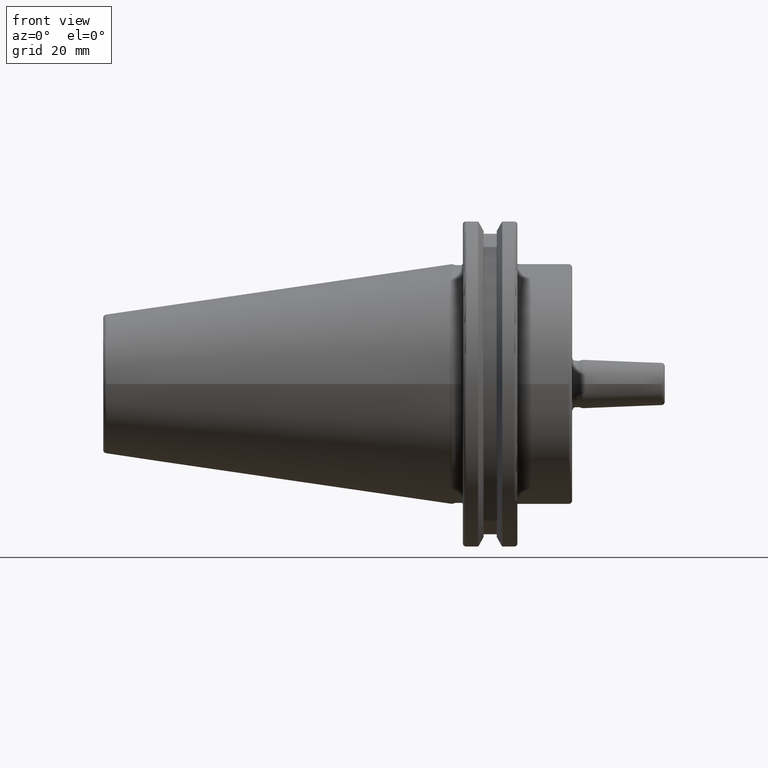
[diagram: clean part render]
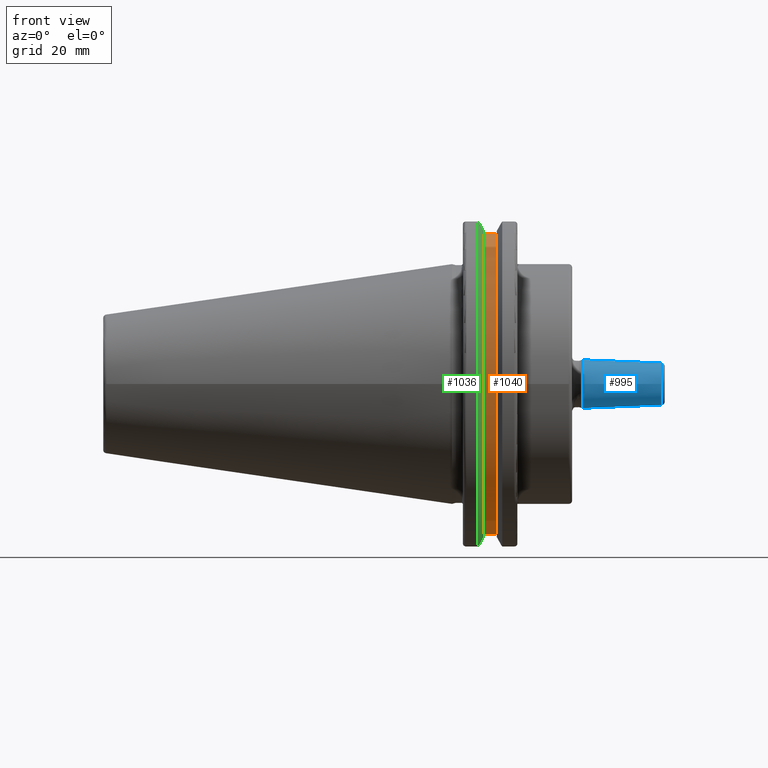
[diagram: same view with three faces highlighted in distinct colors, each labeled with its STEP entity id]
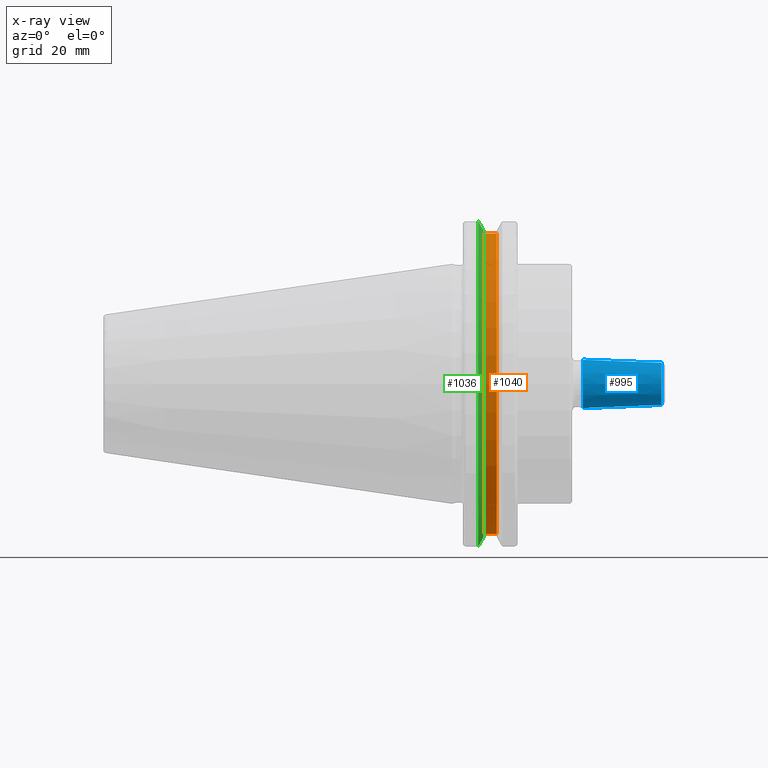
[diagram: x-ray of the same camera — body ghosted, the three highlighted faces saturated]
A machine part, front view with three faces highlighted in distinct colors.
The next image is the same camera in x-ray (body ghosted, the three faces saturated) — at least one of them is partly hidden behind the body in this view.
Their STEP definitions:

[orange] entity #1040 — the highlighted cylindrical surface (partial cylindrical patch) has radius 45.6435 mm, axis along (1, 0, 0).
#152=FACE_OUTER_BOUND('',#216,.T.);
#216=EDGE_LOOP('',(#940,#941,#942,#943));
#264=LINE('',#1709,#333);
#269=LINE('',#1727,#338);
#333=VECTOR('',#1319,10.);
#338=VECTOR('',#1326,10.);
#411=CIRCLE('',#1168,45.6435);
#413=CIRCLE('',#1172,45.6435);
#479=VERTEX_POINT('',#1706);
#480=VERTEX_POINT('',#1708);
#485=VERTEX_POINT('',#1724);
#486=VERTEX_POINT('',#1726);
#597=EDGE_CURVE('',#480,#479,#264,.T.);
#604=EDGE_CURVE('',#486,#485,#269,.T.);
#662=EDGE_CURVE('',#479,#486,#411,.T.);
#664=EDGE_CURVE('',#480,#485,#413,.T.);
#940=ORIENTED_EDGE('',*,*,#604,.T.);
#941=ORIENTED_EDGE('',*,*,#664,.F.);
#942=ORIENTED_EDGE('',*,*,#597,.T.);
#943=ORIENTED_EDGE('',*,*,#662,.T.);
#987=CYLINDRICAL_SURFACE('',#1171,45.6435);
#1040=ADVANCED_FACE('',(#152),#987,.T.);
#1168=AXIS2_PLACEMENT_3D('',#1901,#1444,#1445);
#1171=AXIS2_PLACEMENT_3D('',#1904,#1450,#1451);
#1172=AXIS2_PLACEMENT_3D('',#1905,#1452,#1453);
#1319=DIRECTION('',(-1.,0.,0.));
#1326=DIRECTION('',(1.,0.,0.));
#1444=DIRECTION('center_axis',(1.,0.,0.));
#1445=DIRECTION('ref_axis',(0.,0.,-1.));
#1450=DIRECTION('center_axis',(1.,0.,0.));
#1451=DIRECTION('ref_axis',(0.,-1.,-1.22464679914735E-16));
#1452=DIRECTION('center_axis',(1.,0.,0.));
#1453=DIRECTION('ref_axis',(0.,0.,-1.));
#1706=CARTESIAN_POINT('',(9.2123,-12.95,43.7678716897452));
#1708=CARTESIAN_POINT('',(13.0423,-12.95,43.7678716897452));
#1709=CARTESIAN_POINT('',(11.1273,-12.95,43.7678716897452));
#1724=CARTESIAN_POINT('',(13.0423,-12.95,-43.7678716897452));
#1726=CARTESIAN_POINT('',(9.2123,-12.95,-43.7678716897452));
#1727=CARTESIAN_POINT('',(11.1273,-12.95,-43.7678716897452));
#1901=CARTESIAN_POINT('Origin',(9.2123,0.,0.));
#1904=CARTESIAN_POINT('Origin',(11.1273,0.,0.));
#1905=CARTESIAN_POINT('Origin',(13.0423,0.,0.));

[blue] entity #995 — the highlighted conical surface has half-angle 2.336 deg.
#48=CONICAL_SURFACE('',#1089,6.63206127904202,0.0407647826742056);
#107=FACE_OUTER_BOUND('',#168,.T.);
#168=EDGE_LOOP('',(#697,#698,#699,#700,#701));
#230=LINE('',#1513,#299);
#299=VECTOR('',#1227,6.63206127904202);
#375=CIRCLE('',#1088,7.0995);
#376=CIRCLE('',#1090,6.16462255808404);
#377=CIRCLE('',#1091,6.16462255808404);
#425=VERTEX_POINT('',#1506);
#426=VERTEX_POINT('',#1510);
#427=VERTEX_POINT('',#1511);
#530=EDGE_CURVE('',#425,#425,#375,.T.);
#532=EDGE_CURVE('',#426,#427,#376,.T.);
#533=EDGE_CURVE('',#426,#425,#230,.T.);
#534=EDGE_CURVE('',#427,#426,#377,.T.);
#697=ORIENTED_EDGE('',*,*,#532,.F.);
#698=ORIENTED_EDGE('',*,*,#533,.T.);
#699=ORIENTED_EDGE('',*,*,#530,.T.);
#700=ORIENTED_EDGE('',*,*,#533,.F.);
#701=ORIENTED_EDGE('',*,*,#534,.F.);
#995=ADVANCED_FACE('',(#107),#48,.T.);
#1088=AXIS2_PLACEMENT_3D('',#1507,#1220,#1221);
#1089=AXIS2_PLACEMENT_3D('',#1509,#1223,#1224);
#1090=AXIS2_PLACEMENT_3D('',#1512,#1225,#1226);
#1091=AXIS2_PLACEMENT_3D('',#1514,#1228,#1229);
#1220=DIRECTION('center_axis',(1.,0.,0.));
#1221=DIRECTION('ref_axis',(0.,0.,-1.));
#1223=DIRECTION('center_axis',(-1.,0.,0.));
#1224=DIRECTION('ref_axis',(0.,1.,0.));
#1225=DIRECTION('center_axis',(1.,0.,0.));
#1226=DIRECTION('ref_axis',(0.,0.,-1.));
#1227=DIRECTION('',(-0.999169231301691,-0.0407534933470489,-4.99086351815363E-18));
#1228=DIRECTION('center_axis',(1.,0.,0.));
#1229=DIRECTION('ref_axis',(0.,0.,-1.));
#1506=CARTESIAN_POINT('',(38.1,-7.0995,-8.69437995054664E-16));
#1507=CARTESIAN_POINT('Origin',(38.1,0.,0.));
#1509=CARTESIAN_POINT('Origin',(49.5603767466735,0.,0.));
#1510=CARTESIAN_POINT('',(61.0207534933471,-6.16462255808404,-7.54948528370918E-16));
#1511=CARTESIAN_POINT('',(61.0207534933471,-7.54948528370918E-16,6.16462255808404));
#1512=CARTESIAN_POINT('Origin',(61.0207534933471,0.,0.));
#1513=CARTESIAN_POINT('',(49.5603767466735,-6.63206127904202,-8.12193261712791E-16));
#1514=CARTESIAN_POINT('Origin',(61.0207534933471,0.,0.));

[green] entity #1036 — the highlighted conical surface has half-angle 60 deg.
#18=(
BOUNDED_CURVE()
B_SPLINE_CURVE(2,(#1703,#1704,#1705),.UNSPECIFIED.,.F.,.F.)
B_SPLINE_CURVE_WITH_KNOTS((3,3),(0.,0.275823910675363),.UNSPECIFIED.)
CURVE()
GEOMETRIC_REPRESENTATION_ITEM()
RATIONAL_B_SPLINE_CURVE((1.,1.00038235575411,1.00012873637099))
REPRESENTATION_ITEM('')
);
#21=(
BOUNDED_CURVE()
B_SPLINE_CURVE(2,(#1731,#1732,#1733),.UNSPECIFIED.,.F.,.F.)
B_SPLINE_CURVE_WITH_KNOTS((3,3),(0.0558332664508432,0.331657177124506),
 .UNSPECIFIED.)
CURVE()
GEOMETRIC_REPRESENTATION_ITEM()
RATIONAL_B_SPLINE_CURVE((1.00012873636717,1.00038235574275,1.))
REPRESENTATION_ITEM('')
);
#22=(
BOUNDED_CURVE()
B_SPLINE_CURVE(2,(#1766,#1767,#1768),.UNSPECIFIED.,.F.,.F.)
B_SPLINE_CURVE_WITH_KNOTS((3,3),(0.,0.0648240472897574),.UNSPECIFIED.)
CURVE()
GEOMETRIC_REPRESENTATION_ITEM()
RATIONAL_B_SPLINE_CURVE((1.,1.00011477674865,1.00019140645997))
REPRESENTATION_ITEM('')
);
#23=(
BOUNDED_CURVE()
B_SPLINE_CURVE(2,(#1774,#1775,#1776),.UNSPECIFIED.,.F.,.F.)
B_SPLINE_CURVE_WITH_KNOTS((3,3),(0.325260944932423,0.3900849922222),
 .UNSPECIFIED.)
CURVE()
GEOMETRIC_REPRESENTATION_ITEM()
RATIONAL_B_SPLINE_CURVE((1.00019140645937,1.00011477674829,1.))
REPRESENTATION_ITEM('')
);
#54=CONICAL_SURFACE('',#1163,47.8172386482472,1.0471975511966);
#148=FACE_OUTER_BOUND('',#212,.T.);
#212=EDGE_LOOP('',(#922,#923,#924,#925,#926,#927));
#394=CIRCLE('',#1125,49.2125);
#409=CIRCLE('',#1164,46.4219772964944);
#477=VERTEX_POINT('',#1700);
#478=VERTEX_POINT('',#1702);
#487=VERTEX_POINT('',#1728);
#488=VERTEX_POINT('',#1730);
#492=VERTEX_POINT('',#1764);
#493=VERTEX_POINT('',#1770);
#595=EDGE_CURVE('',#478,#477,#18,.T.);
#606=EDGE_CURVE('',#488,#487,#21,.T.);
#614=EDGE_CURVE('',#492,#477,#22,.T.);
#616=EDGE_CURVE('',#492,#493,#394,.T.);
#617=EDGE_CURVE('',#488,#493,#23,.T.);
#660=EDGE_CURVE('',#478,#487,#409,.T.);
#922=ORIENTED_EDGE('',*,*,#617,.F.);
#923=ORIENTED_EDGE('',*,*,#606,.T.);
#924=ORIENTED_EDGE('',*,*,#660,.F.);
#925=ORIENTED_EDGE('',*,*,#595,.T.);
#926=ORIENTED_EDGE('',*,*,#614,.F.);
#927=ORIENTED_EDGE('',*,*,#616,.T.);
#1036=ADVANCED_FACE('',(#148),#54,.T.);
#1125=AXIS2_PLACEMENT_3D('',#1772,#1340,#1341);
#1163=AXIS2_PLACEMENT_3D('',#1896,#1434,#1435);
#1164=AXIS2_PLACEMENT_3D('',#1897,#1436,#1437);
#1340=DIRECTION('center_axis',(1.,0.,0.));
#1341=DIRECTION('ref_axis',(0.,0.,-1.));
#1434=DIRECTION('center_axis',(-1.,0.,0.));
#1435=DIRECTION('ref_axis',(0.,-1.,-1.22464679914735E-16));
#1436=DIRECTION('center_axis',(1.,0.,0.));
#1437=DIRECTION('ref_axis',(0.,0.,-1.));
#1700=CARTESIAN_POINT('',(7.87958960562425,-12.95,46.9780755322918));
#1702=CARTESIAN_POINT('',(9.2123,-12.95,44.5791147973604));
#1703=CARTESIAN_POINT('Ctrl Pts',(9.2123,-12.95,44.5791147973604));
#1704=CARTESIAN_POINT('Ctrl Pts',(8.56340449055559,-12.95,45.7494966802201));
#1705=CARTESIAN_POINT('Ctrl Pts',(7.87958960562425,-12.95,46.9780755322918));
#1728=CARTESIAN_POINT('',(9.2123,-12.95,-44.5791147973604));
#1730=CARTESIAN_POINT('',(7.87958960562425,-12.95,-46.9780755322918));
#1731=CARTESIAN_POINT('Ctrl Pts',(7.87958960562425,-12.95,-46.9780755322918));
#1732=CARTESIAN_POINT('Ctrl Pts',(8.56340449054235,-12.95,-45.7494966802439));
#1733=CARTESIAN_POINT('Ctrl Pts',(9.2123,-12.95,-44.5791147973604));
#1764=CARTESIAN_POINT('',(7.60119096595128,-13.4317035994433,47.3440544806494));
#1766=CARTESIAN_POINT('Ctrl Pts',(7.60119096595127,-13.4317035994433,47.3440544806494));
#1767=CARTESIAN_POINT('Ctrl Pts',(7.74146896663823,-13.1896660169965,47.1601640966264));
#1768=CARTESIAN_POINT('Ctrl Pts',(7.87958960562425,-12.95,46.9780755322918));
#1770=CARTESIAN_POINT('',(7.60119096595128,-13.4317035994433,-47.3440544806494));
#1772=CARTESIAN_POINT('Origin',(7.60119096595128,0.,0.));
#1774=CARTESIAN_POINT('Ctrl Pts',(7.87958960562425,-12.95,-46.9780755322918));
#1775=CARTESIAN_POINT('Ctrl Pts',(7.74146896663818,-13.1896660169967,-47.1601640966265));
#1776=CARTESIAN_POINT('Ctrl Pts',(7.60119096595127,-13.4317035994433,-47.3440544806494));
#1896=CARTESIAN_POINT('Origin',(8.40674548297564,0.,0.));
#1897=CARTESIAN_POINT('Origin',(9.2123,0.,0.));